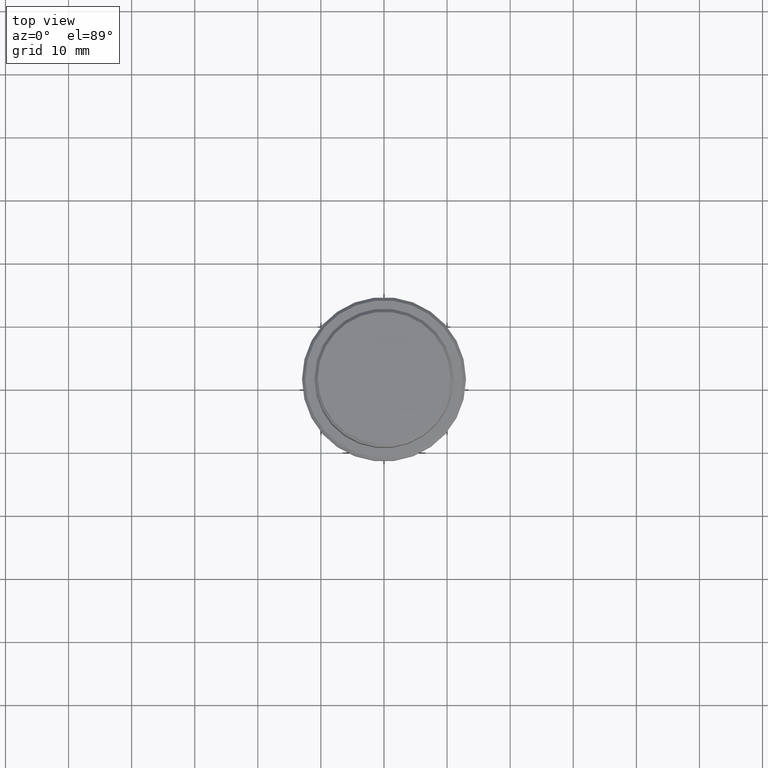
[diagram: clean part render]
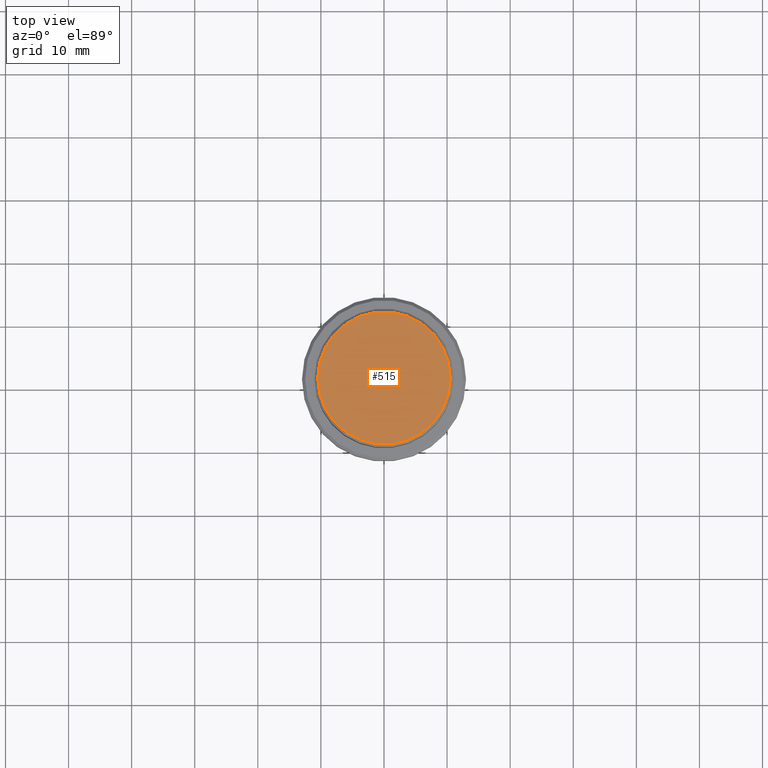
[diagram: same view with one face highlighted and labeled with its STEP entity id]
A machine part, top view. The second image highlights one B-rep face of the part: STEP entity #515.
In plain terms, the highlighted planar face has unit normal (0, -0, 1).
Its self-contained STEP definition (entity closure, byte-faithful):
#56 = DIRECTION ( 'NONE',  ( 0.000000000000000000, -0.000000000000000000, 1.000000000000000000 ) ) ;
#86 = CARTESIAN_POINT ( 'NONE',  ( 0.000000000000000000, 0.000000000000000000, 0.000000000000000000 ) ) ;
#206 = DIRECTION ( 'NONE',  ( -0.000000000000000000, -0.000000000000000000, 1.000000000000000000 ) ) ;
#242 = DIRECTION ( 'NONE',  ( -0.000000000000000000, -0.000000000000000000, 1.000000000000000000 ) ) ;
#331 = ORIENTED_EDGE ( 'NONE', *, *, #667, .T. ) ;
#389 = PLANE ( 'NONE',  #793 ) ;
#398 = CARTESIAN_POINT ( 'NONE',  ( 10.50000000000002309, 1.316495309083405209E-15, 0.000000000000000000 ) ) ;
#400 = ORIENTED_EDGE ( 'NONE', *, *, #1215, .T. ) ;
#406 = CIRCLE ( 'NONE', #498, 10.50000000000002309 ) ;
#435 = DIRECTION ( 'NONE',  ( 1.000000000000000000, 0.000000000000000000, 0.000000000000000000 ) ) ;
#498 = AXIS2_PLACEMENT_3D ( 'NONE', #86, #206, #435 ) ;
#515 = ADVANCED_FACE ( 'NONE', ( #710 ), #389, .T. ) ;
#568 = DIRECTION ( 'NONE',  ( 1.000000000000000000, 0.000000000000000000, 0.000000000000000000 ) ) ;
#667 = EDGE_CURVE ( 'NONE', #1230, #928, #1402, .T. ) ;
#692 = DIRECTION ( 'NONE',  ( 1.000000000000000000, 0.000000000000000000, 0.000000000000000000 ) ) ;
#701 = CARTESIAN_POINT ( 'NONE',  ( -10.50000000000002309, 0.000000000000000000, 0.000000000000000000 ) ) ;
#710 = FACE_OUTER_BOUND ( 'NONE', #1229, .T. ) ;
#770 = CARTESIAN_POINT ( 'NONE',  ( 0.000000000000000000, 0.000000000000000000, 0.000000000000000000 ) ) ;
#793 = AXIS2_PLACEMENT_3D ( 'NONE', #1262, #56, #692 ) ;
#928 = VERTEX_POINT ( 'NONE', #701 ) ;
#1215 = EDGE_CURVE ( 'NONE', #928, #1230, #406, .T. ) ;
#1229 = EDGE_LOOP ( 'NONE', ( #400, #331 ) ) ;
#1230 = VERTEX_POINT ( 'NONE', #398 ) ;
#1262 = CARTESIAN_POINT ( 'NONE',  ( 0.000000000000000000, 0.000000000000000000, 0.000000000000000000 ) ) ;
#1298 = AXIS2_PLACEMENT_3D ( 'NONE', #770, #242, #568 ) ;
#1402 = CIRCLE ( 'NONE', #1298, 10.50000000000002309 ) ;